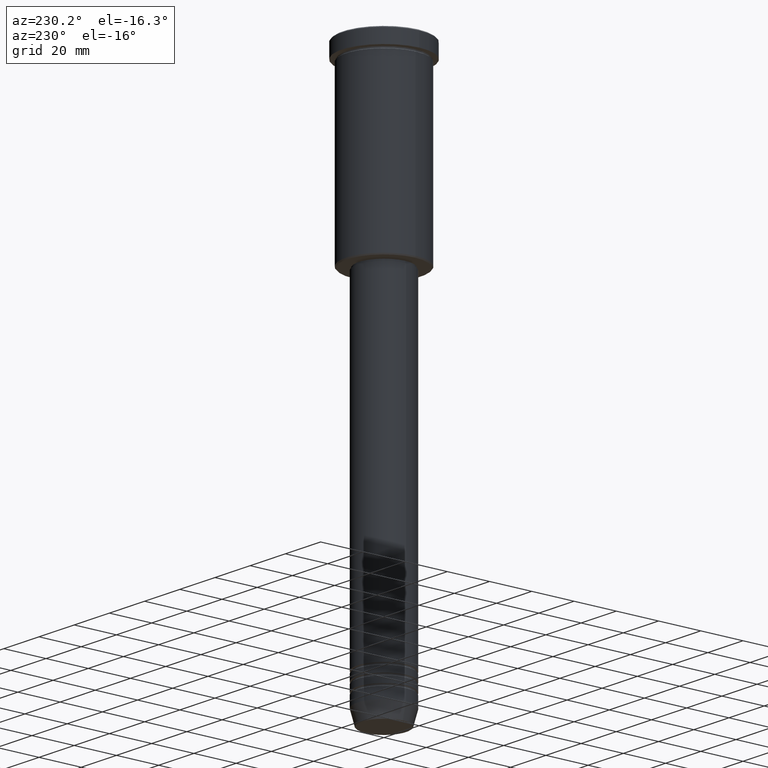
[diagram: clean part render]
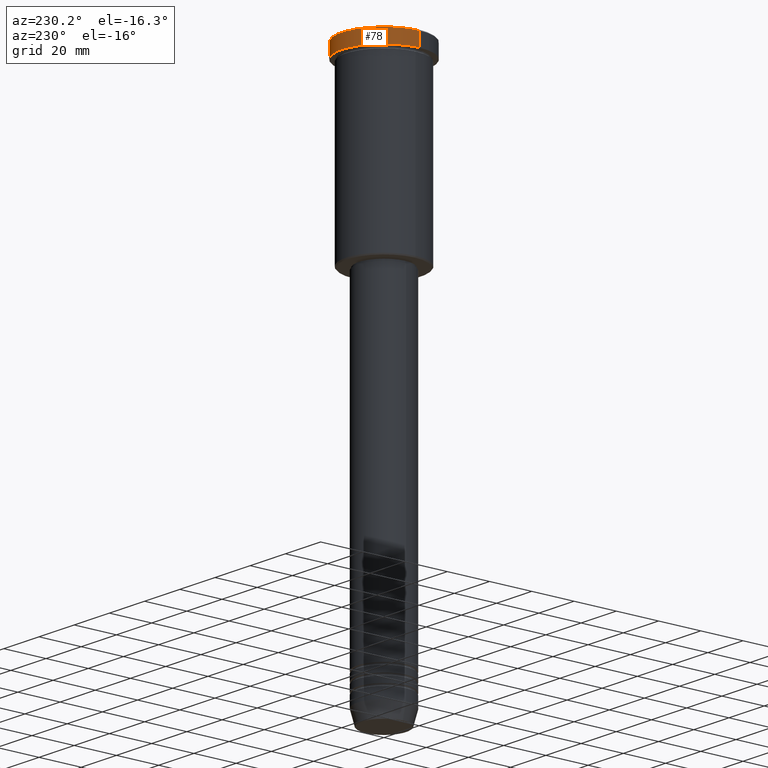
[diagram: same view with one face highlighted and labeled with its STEP entity id]
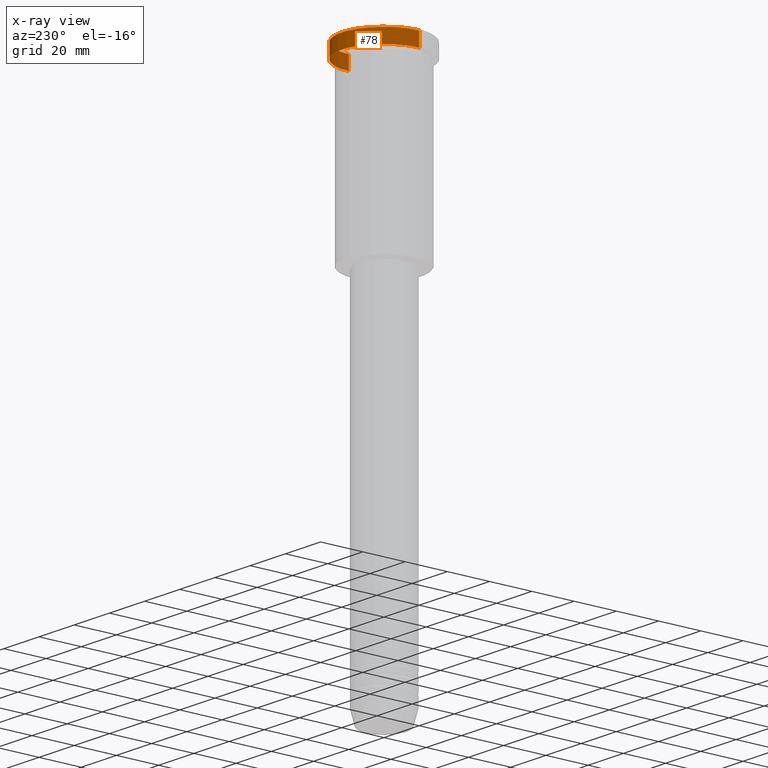
[diagram: x-ray of the same camera — body ghosted, the highlighted face saturated]
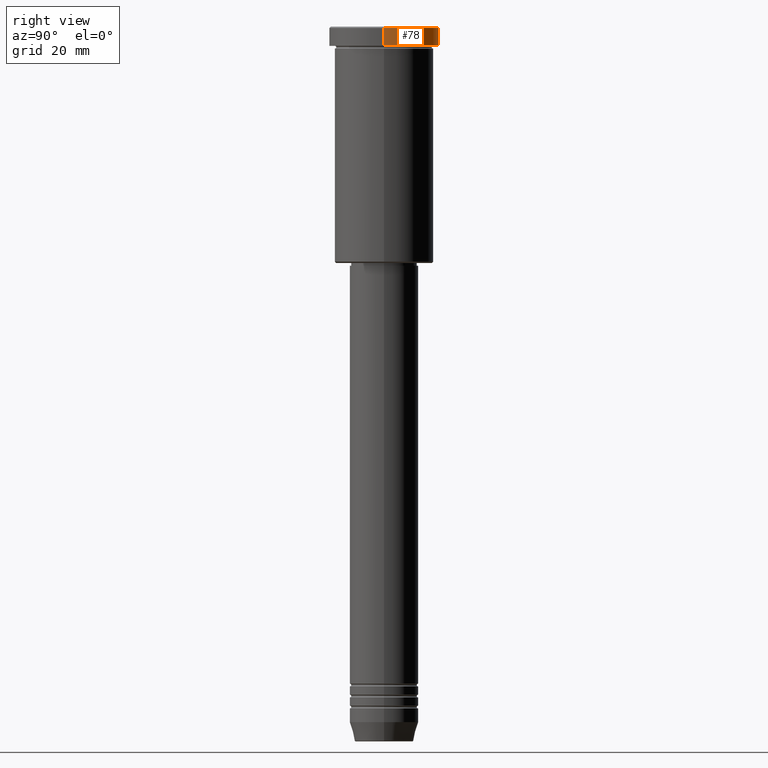
[diagram: same view with one face highlighted and labeled with its STEP entity id]
A machine part, auxiliary view. The second image highlights one B-rep face of the part: STEP entity #78.
The next image is the same camera in x-ray: the body ghosted, the highlighted face saturated — about 3% of this face is hidden behind the body in this view.
A second angle (right view) of the same face is appended — the face is thin or edge-on in the first view.
In plain terms, the highlighted cylindrical surface (partial cylindrical patch) has radius 20 mm, axis along (-0, -0, 1).
Its self-contained STEP definition (entity closure, byte-faithful):
#5 = CIRCLE ( 'NONE', #626, 20.00000000000000000 ) ;
#12 = ORIENTED_EDGE ( 'NONE', *, *, #952, .F. ) ;
#52 = EDGE_LOOP ( 'NONE', ( #990, #326, #824, #12 ) ) ;
#78 = ADVANCED_FACE ( 'NONE', ( #1114 ), #460, .T. ) ;
#145 = DIRECTION ( 'NONE',  ( 1.000000000000000000, 0.000000000000000000, 0.000000000000000000 ) ) ;
#171 = EDGE_CURVE ( 'NONE', #494, #388, #173, .T. ) ;
#173 = CIRCLE ( 'NONE', #845, 20.00000000000000000 ) ;
#192 = DIRECTION ( 'NONE',  ( -0.000000000000000000, -0.000000000000000000, 1.000000000000000000 ) ) ;
#243 = LINE ( 'NONE', #773, #1097 ) ;
#281 = AXIS2_PLACEMENT_3D ( 'NONE', #298, #1015, #381 ) ;
#298 = CARTESIAN_POINT ( 'NONE',  ( 0.000000000000000000, 0.000000000000000000, 0.000000000000000000 ) ) ;
#305 = LINE ( 'NONE', #1111, #570 ) ;
#309 = DIRECTION ( 'NONE',  ( -0.000000000000000000, -0.000000000000000000, 1.000000000000000000 ) ) ;
#326 = ORIENTED_EDGE ( 'NONE', *, *, #1120, .T. ) ;
#381 = DIRECTION ( 'NONE',  ( 1.000000000000000000, 0.000000000000000000, 0.000000000000000000 ) ) ;
#388 = VERTEX_POINT ( 'NONE', #521 ) ;
#424 = CARTESIAN_POINT ( 'NONE',  ( -20.00000000000000000, 2.449293598294706513E-15, -0.5000000000000247580 ) ) ;
#460 = CYLINDRICAL_SURFACE ( 'NONE', #281, 20.00000000000000000 ) ;
#484 = CARTESIAN_POINT ( 'NONE',  ( 20.00000000000000000, 0.000000000000000000, -6.999999999999995559 ) ) ;
#494 = VERTEX_POINT ( 'NONE', #484 ) ;
#521 = CARTESIAN_POINT ( 'NONE',  ( -20.00000000000000000, 2.449293598294706513E-15, -6.999999999999995559 ) ) ;
#526 = DIRECTION ( 'NONE',  ( 0.000000000000000000, 0.000000000000000000, -1.000000000000000000 ) ) ;
#570 = VECTOR ( 'NONE', #192, 1000.000000000000000 ) ;
#590 = CARTESIAN_POINT ( 'NONE',  ( 0.000000000000000000, 0.000000000000000000, -6.999999999999995559 ) ) ;
#602 = CARTESIAN_POINT ( 'NONE',  ( 20.00000000000000000, 0.000000000000000000, -0.5000000000000247580 ) ) ;
#626 = AXIS2_PLACEMENT_3D ( 'NONE', #875, #526, #145 ) ;
#678 = DIRECTION ( 'NONE',  ( -0.000000000000000000, -0.000000000000000000, 1.000000000000000000 ) ) ;
#714 = EDGE_CURVE ( 'NONE', #1091, #1101, #5, .T. ) ;
#773 = CARTESIAN_POINT ( 'NONE',  ( -20.00000000000000000, 2.449293598294706513E-15, 0.000000000000000000 ) ) ;
#782 = DIRECTION ( 'NONE',  ( 1.000000000000000000, 0.000000000000000000, 0.000000000000000000 ) ) ;
#824 = ORIENTED_EDGE ( 'NONE', *, *, #714, .T. ) ;
#845 = AXIS2_PLACEMENT_3D ( 'NONE', #590, #678, #782 ) ;
#875 = CARTESIAN_POINT ( 'NONE',  ( 0.000000000000000000, 0.000000000000000000, -0.5000000000000247580 ) ) ;
#952 = EDGE_CURVE ( 'NONE', #494, #1101, #305, .T. ) ;
#990 = ORIENTED_EDGE ( 'NONE', *, *, #171, .T. ) ;
#1015 = DIRECTION ( 'NONE',  ( -0.000000000000000000, -0.000000000000000000, 1.000000000000000000 ) ) ;
#1091 = VERTEX_POINT ( 'NONE', #424 ) ;
#1097 = VECTOR ( 'NONE', #309, 1000.000000000000000 ) ;
#1101 = VERTEX_POINT ( 'NONE', #602 ) ;
#1111 = CARTESIAN_POINT ( 'NONE',  ( 20.00000000000000000, 0.000000000000000000, 0.000000000000000000 ) ) ;
#1114 = FACE_OUTER_BOUND ( 'NONE', #52, .T. ) ;
#1120 = EDGE_CURVE ( 'NONE', #388, #1091, #243, .T. ) ;